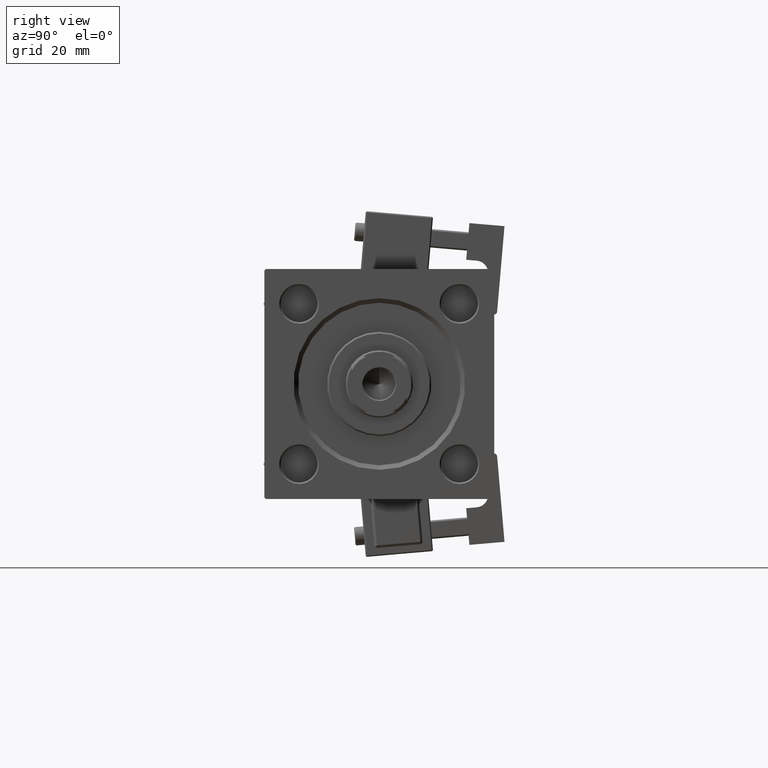
[diagram: clean part render]
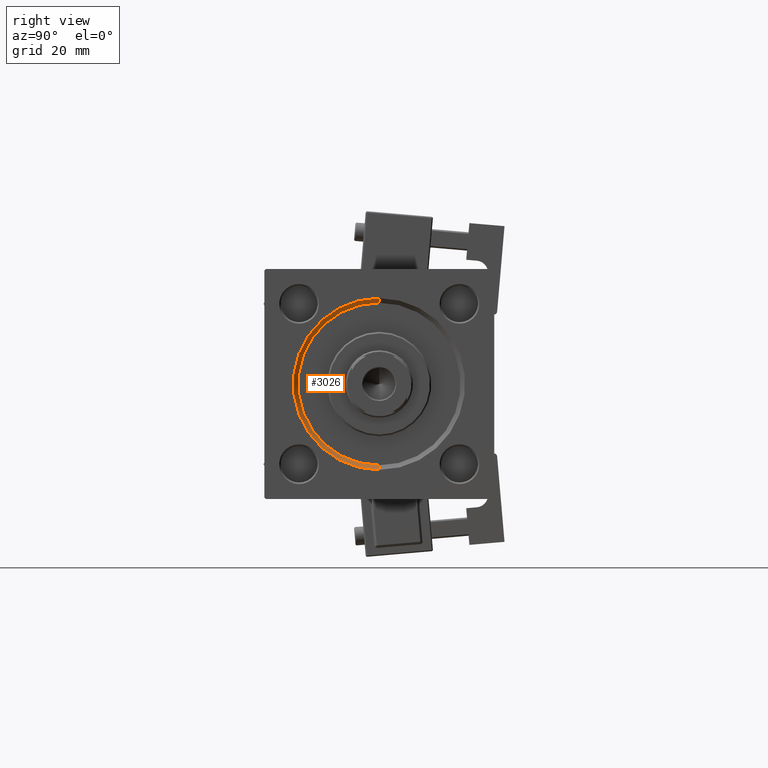
[diagram: same view with one face highlighted and labeled with its STEP entity id]
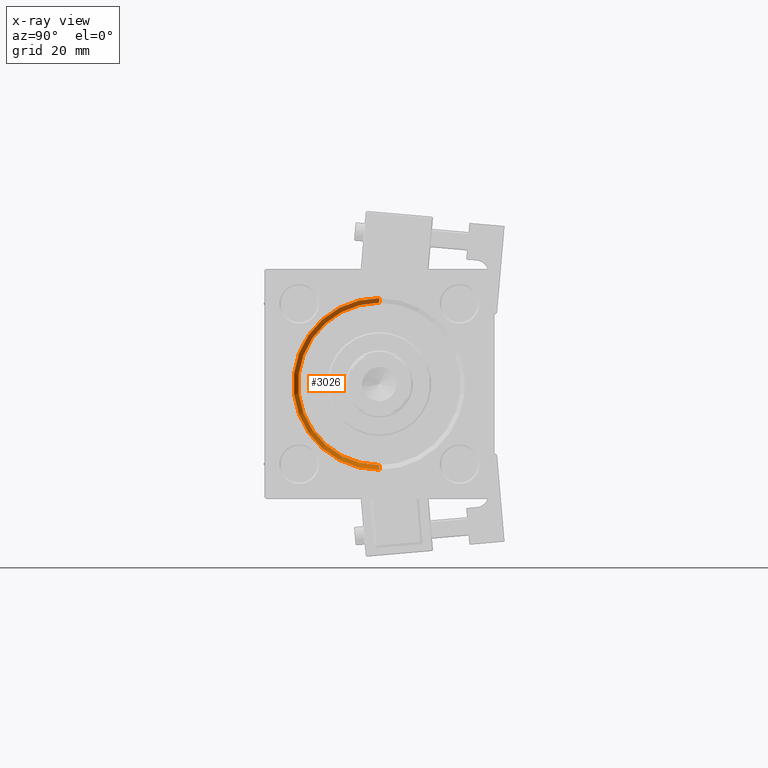
[diagram: x-ray of the same camera — body ghosted, the highlighted face saturated]
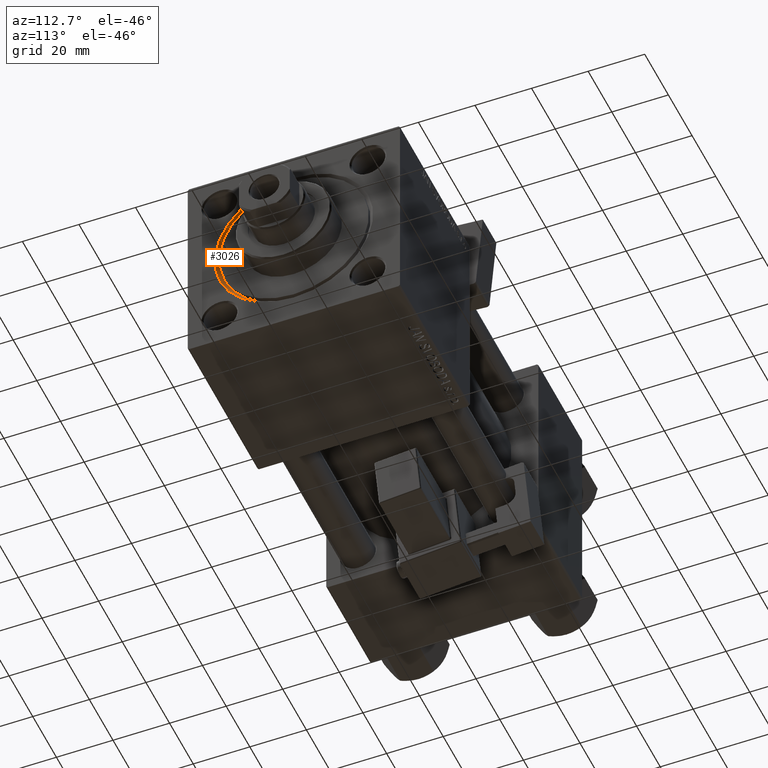
[diagram: same view with one face highlighted and labeled with its STEP entity id]
A machine part, right view. The second image highlights one B-rep face of the part: STEP entity #3026.
The next image is the same camera in x-ray: the body ghosted, the highlighted face saturated — about 0% of this face is hidden behind the body in this view.
A second angle (auxiliary view) of the same face is appended — the face is thin or edge-on in the first view.
In plain terms, the highlighted conical surface has half-angle 45 deg.
Its self-contained STEP definition (entity closure, byte-faithful):
#2747 = DIRECTION ( 'NONE',  ( 1.000000000000000000, 0.000000000000000000, 0.000000000000000000 ) ) ;
#3026 = ADVANCED_FACE ( 'NONE', ( #43716 ), #26719, .F. ) ;
#3874 = AXIS2_PLACEMENT_3D ( 'NONE', #48474, #48216, #28343 ) ;
#10080 = VERTEX_POINT ( 'NONE', #51391 ) ;
#10115 = AXIS2_PLACEMENT_3D ( 'NONE', #11225, #2747, #22099 ) ;
#10832 = LINE ( 'NONE', #17988, #27895 ) ;
#11225 = CARTESIAN_POINT ( 'NONE',  ( 152.5000000000000568, 0.000000000000000000, 0.000000000000000000 ) ) ;
#14652 = EDGE_CURVE ( 'NONE', #10080, #43532, #10832, .T. ) ;
#15662 = DIRECTION ( 'NONE',  ( 0.7071067811865361374, 8.659560562355073374E-17, 0.7071067811865588970 ) ) ;
#16868 = ORIENTED_EDGE ( 'NONE', *, *, #51982, .F. ) ;
#17988 = CARTESIAN_POINT ( 'NONE',  ( 152.5000000000000568, 0.000000000000000000, -26.50000000000000355 ) ) ;
#19647 = VERTEX_POINT ( 'NONE', #36359 ) ;
#22099 = DIRECTION ( 'NONE',  ( 0.000000000000000000, 0.000000000000000000, 1.000000000000000000 ) ) ;
#26719 = CONICAL_SURFACE ( 'NONE', #3874, 26.50000000000000355, 0.7853981633974644883 ) ;
#27592 = LINE ( 'NONE', #31814, #35749 ) ;
#27895 = VECTOR ( 'NONE', #34936, 1000.000000000000114 ) ;
#28343 = DIRECTION ( 'NONE',  ( 0.000000000000000000, 0.000000000000000000, -1.000000000000000000 ) ) ;
#29389 = AXIS2_PLACEMENT_3D ( 'NONE', #42178, #41902, #38476 ) ;
#30575 = CARTESIAN_POINT ( 'NONE',  ( 154.0000000000000000, 0.000000000000000000, -27.99999999999999645 ) ) ;
#31814 = CARTESIAN_POINT ( 'NONE',  ( 152.5000000000000568, 3.245314017740486554E-15, 26.50000000000000355 ) ) ;
#32228 = EDGE_LOOP ( 'NONE', ( #37433, #49895, #16868, #46230 ) ) ;
#32963 = CIRCLE ( 'NONE', #10115, 26.50000000000000355 ) ;
#33728 = VERTEX_POINT ( 'NONE', #42267 ) ;
#34936 = DIRECTION ( 'NONE',  ( 0.7071067811865361374, 0.000000000000000000, -0.7071067811865588970 ) ) ;
#35749 = VECTOR ( 'NONE', #15662, 1000.000000000000114 ) ;
#36359 = CARTESIAN_POINT ( 'NONE',  ( 152.5000000000000568, 3.245314017740486554E-15, 26.50000000000000355 ) ) ;
#37433 = ORIENTED_EDGE ( 'NONE', *, *, #40244, .F. ) ;
#38476 = DIRECTION ( 'NONE',  ( 0.000000000000000000, 0.000000000000000000, 1.000000000000000000 ) ) ;
#38731 = CIRCLE ( 'NONE', #29389, 27.99999999999999645 ) ;
#40244 = EDGE_CURVE ( 'NONE', #19647, #10080, #32963, .T. ) ;
#41902 = DIRECTION ( 'NONE',  ( -1.000000000000000000, -0.000000000000000000, 0.000000000000000000 ) ) ;
#42178 = CARTESIAN_POINT ( 'NONE',  ( 154.0000000000000000, 0.000000000000000000, 0.000000000000000000 ) ) ;
#42267 = CARTESIAN_POINT ( 'NONE',  ( 154.0000000000000000, 3.429011037612588881E-15, 27.99999999999999645 ) ) ;
#43532 = VERTEX_POINT ( 'NONE', #30575 ) ;
#43716 = FACE_OUTER_BOUND ( 'NONE', #32228, .T. ) ;
#46230 = ORIENTED_EDGE ( 'NONE', *, *, #14652, .F. ) ;
#46875 = EDGE_CURVE ( 'NONE', #19647, #33728, #27592, .T. ) ;
#48216 = DIRECTION ( 'NONE',  ( 1.000000000000000000, 0.000000000000000000, 0.000000000000000000 ) ) ;
#48474 = CARTESIAN_POINT ( 'NONE',  ( 152.5000000000000568, 0.000000000000000000, 0.000000000000000000 ) ) ;
#49895 = ORIENTED_EDGE ( 'NONE', *, *, #46875, .T. ) ;
#51391 = CARTESIAN_POINT ( 'NONE',  ( 152.5000000000000568, 0.000000000000000000, -26.50000000000000355 ) ) ;
#51982 = EDGE_CURVE ( 'NONE', #43532, #33728, #38731, .T. ) ;